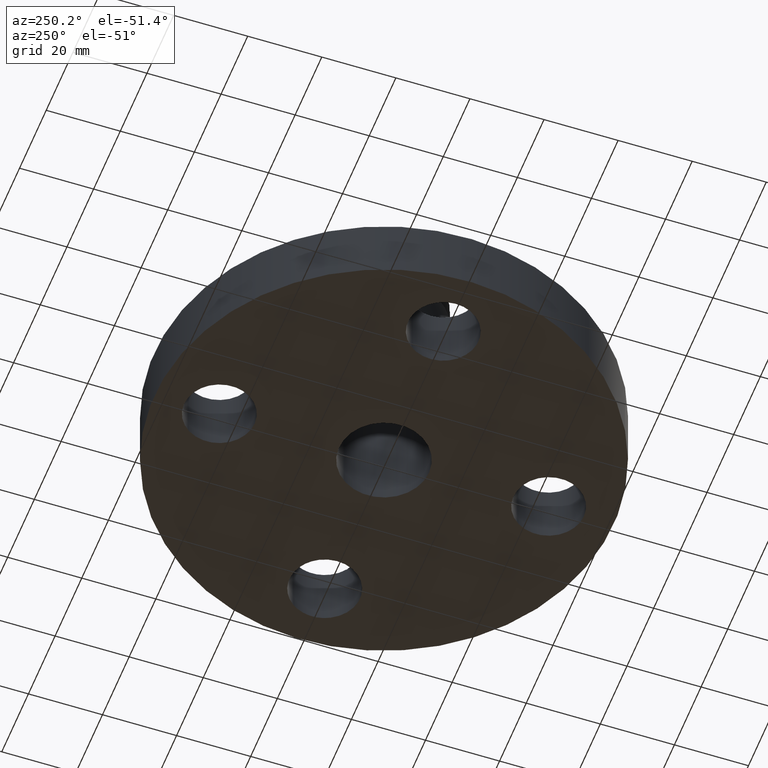
[diagram: clean part render]
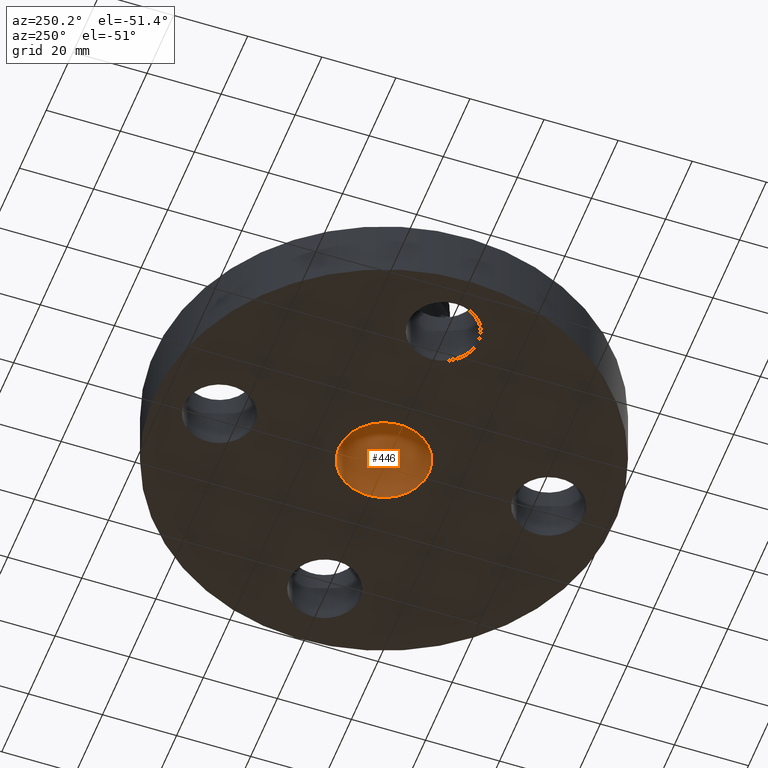
[diagram: same view with one face highlighted and labeled with its STEP entity id]
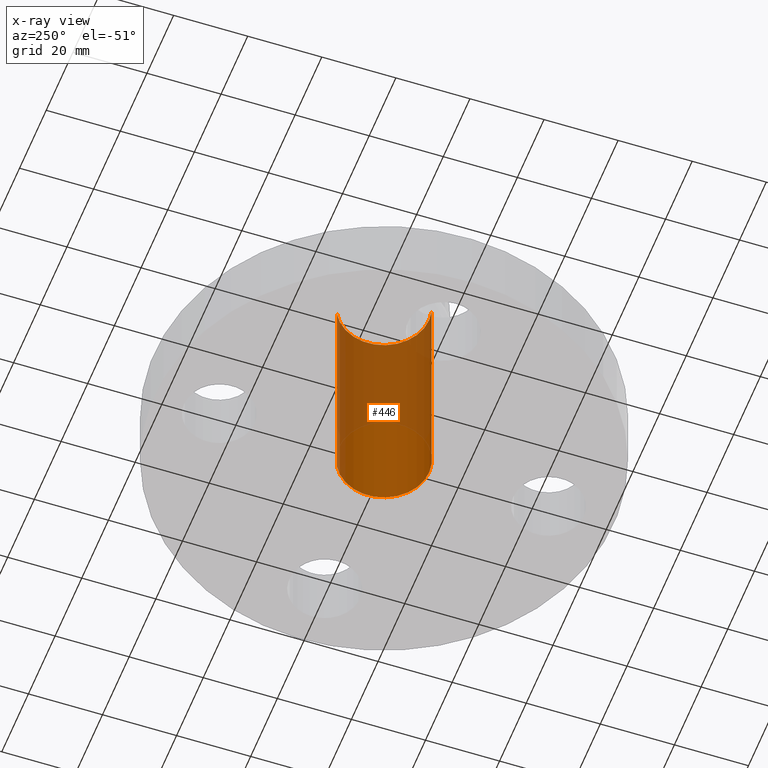
[diagram: x-ray of the same camera — body ghosted, the highlighted face saturated]
A machine part, auxiliary view. The second image highlights one B-rep face of the part: STEP entity #446.
The next image is the same camera in x-ray: the body ghosted, the highlighted face saturated — about 60% of this face is hidden behind the body in this view.
In plain terms, the highlighted cylindrical surface (partial cylindrical patch) has radius 12.1539 mm, axis along (0, 0, -1).
Its self-contained STEP definition (entity closure, byte-faithful):
#165=AXIS2_PLACEMENT_3D('Circle Axis2P3D',#163,#164,$) ;
#419=AXIS2_PLACEMENT_3D('Cylinder Axis2P3D',#416,#417,#418) ;
#423=AXIS2_PLACEMENT_3D('Circle Axis2P3D',#421,#422,$) ;
#163=CARTESIAN_POINT('Axis2P3D Location',(-1.28117289306E-011,-1.50207055892E-012,0.)) ;
#167=CARTESIAN_POINT('Vertex',(0.229405120223,0.419923255866,4.10618171136E-012)) ;
#169=CARTESIAN_POINT('Vertex',(-0.229405120206,-0.419923255896,0.)) ;
#416=CARTESIAN_POINT('Axis2P3D Location',(0.,0.,1.22)) ;
#421=CARTESIAN_POINT('Axis2P3D Location',(0.,0.,2.44)) ;
#425=CARTESIAN_POINT('Vertex',(0.229405120206,0.419923255837,2.44000000001)) ;
#427=CARTESIAN_POINT('Vertex',(-0.229405120206,-0.419923255865,2.44000000001)) ;
#430=CARTESIAN_POINT('Line Origine',(0.229405120223,0.419923255866,1.22)) ;
#435=CARTESIAN_POINT('Line Origine',(-0.229405120223,-0.419923255866,1.22)) ;
#164=DIRECTION('Axis2P3D Direction',(0.,0.,-0.0393700787402)) ;
#417=DIRECTION('Axis2P3D Direction',(0.,0.,-0.0393700787402)) ;
#418=DIRECTION('Axis2P3D XDirection',(0.0188750212049,0.0345504945626,0.)) ;
#422=DIRECTION('Axis2P3D Direction',(0.,0.,-0.0393700787402)) ;
#431=DIRECTION('Vector Direction',(0.,0.,-0.0393700787402)) ;
#436=DIRECTION('Vector Direction',(0.,0.,-0.0393700787402)) ;
#432=VECTOR('Line Direction',#431,0.0393700787402) ;
#437=VECTOR('Line Direction',#436,0.0393700787402) ;
#441=ORIENTED_EDGE('',*,*,#429,.F.) ;
#442=ORIENTED_EDGE('',*,*,#434,.T.) ;
#443=ORIENTED_EDGE('',*,*,#171,.T.) ;
#444=ORIENTED_EDGE('',*,*,#439,.F.) ;
#446=ADVANCED_FACE('PartBody',(#445),#420,.F.) ;
#166=CIRCLE('generated circle',#165,0.478500000012) ;
#424=CIRCLE('generated circle',#423,0.478500000002) ;
#420=CYLINDRICAL_SURFACE('generated cylinder',#419,0.478500000002) ;
#171=EDGE_CURVE('',#168,#170,#166,.T.) ;
#429=EDGE_CURVE('',#426,#428,#424,.T.) ;
#434=EDGE_CURVE('',#426,#168,#433,.T.) ;
#439=EDGE_CURVE('',#428,#170,#438,.T.) ;
#440=EDGE_LOOP('',(#441,#442,#443,#444)) ;
#445=FACE_OUTER_BOUND('',#440,.T.) ;
#433=LINE('Line',#430,#432) ;
#438=LINE('Line',#435,#437) ;
#168=VERTEX_POINT('',#167) ;
#170=VERTEX_POINT('',#169) ;
#426=VERTEX_POINT('',#425) ;
#428=VERTEX_POINT('',#427) ;